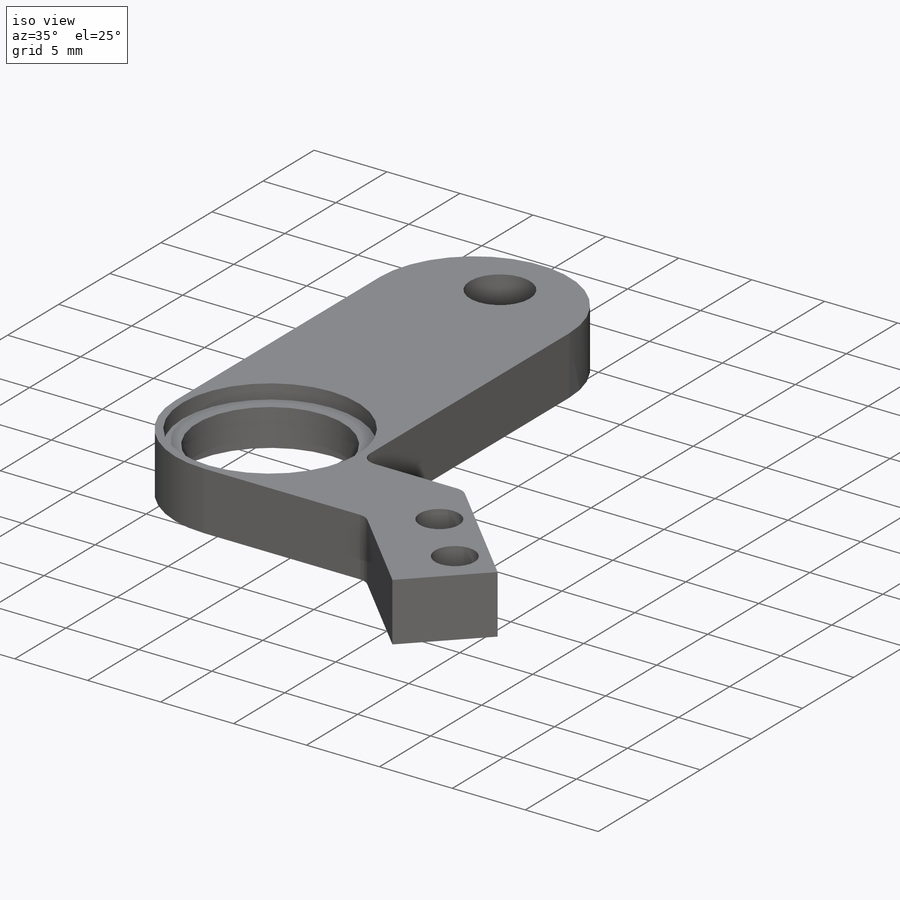
[diagram: iso view]
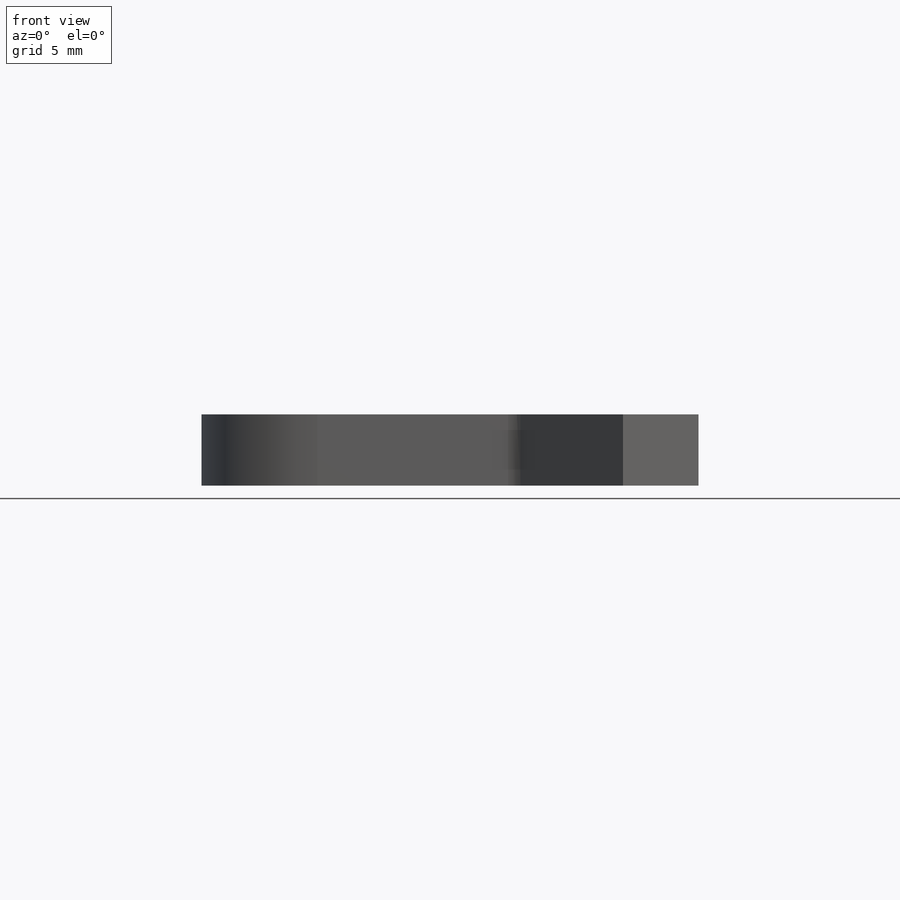
[diagram: front view]
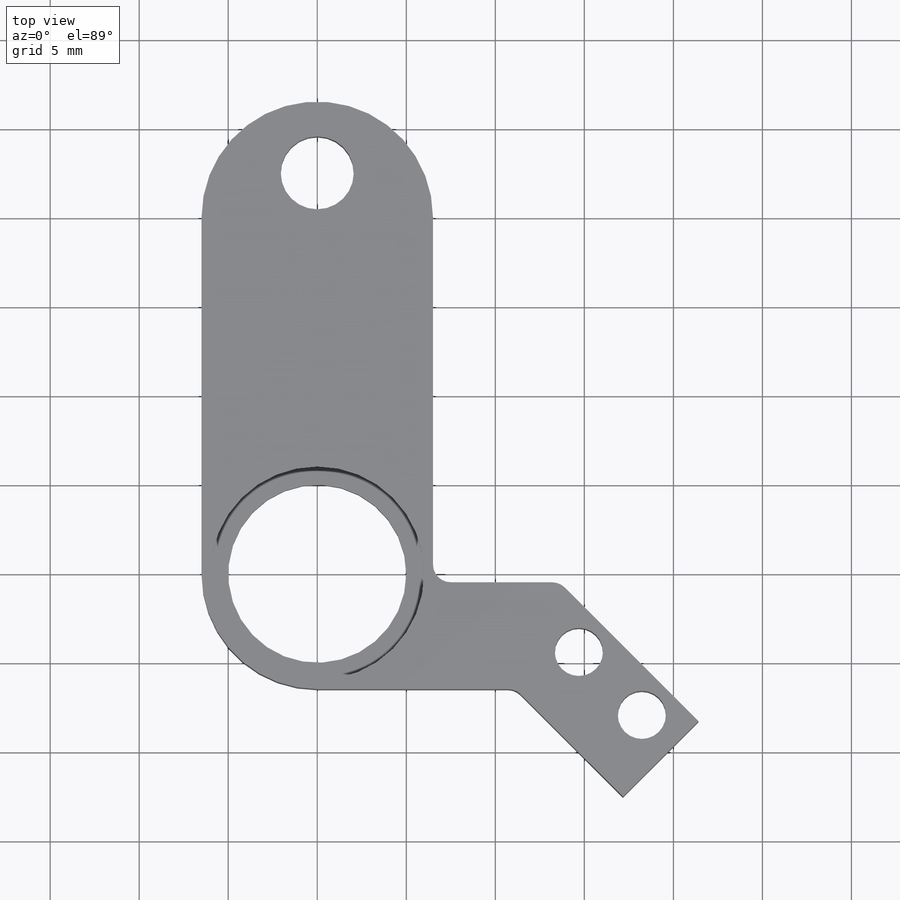
[diagram: top view]
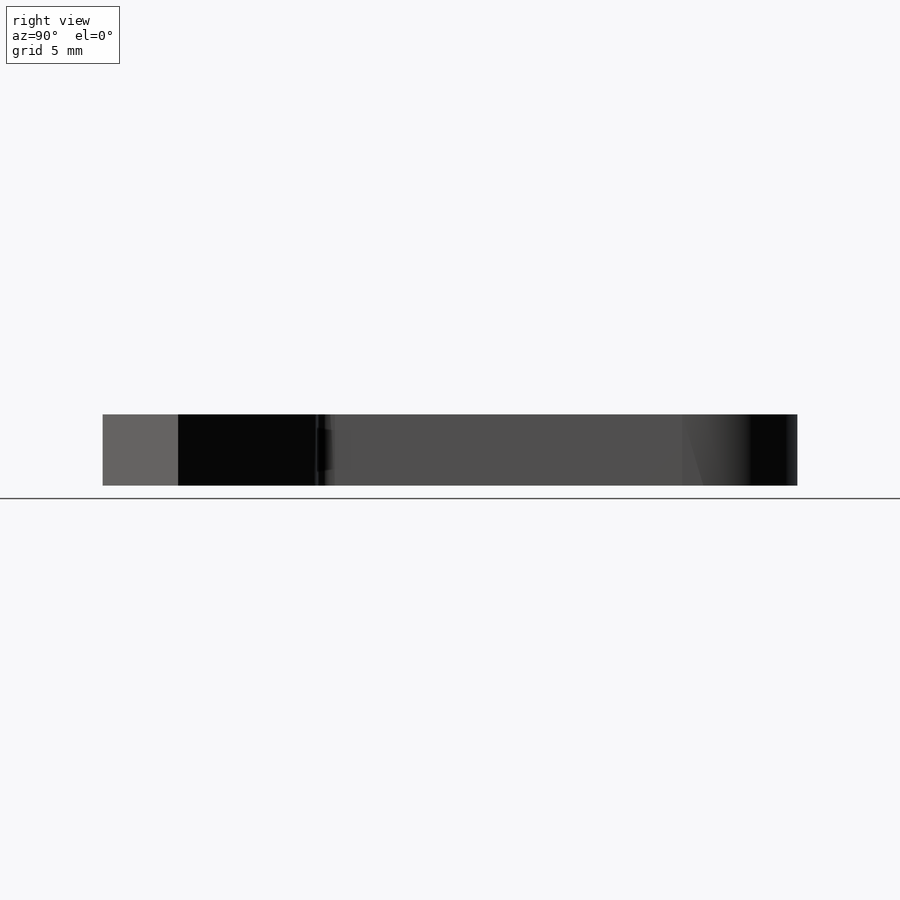
[diagram: right view]
SOLIDWORKS PART (.sldprt)
format: sldprt  version: not decoded by parser v0  size: 226,304 bytes
history: native  units: mm
features: sketch x6, plane x2, hole x2, fillet x2, material x1, extrude x1, cut_revolve x1 (+13 scaffold rows collapsed)
feature tree (28):
  scaffold x13  (default folders/planes/origin — collapsed)
  material  "Material <not specified>"
  plane  "Plane1"
  sketch  "Sketch1"
  extrude  "Boss-Extrude1"  Depth=4mm
  plane  "Plane2"  Offset=20mm
  sketch  "Sketch2"  dims[D1=1.0mm]
  cut_revolve  "Cut-Revolve1"  Angle=360deg
  hole  "Ø4.1 (4.1) Diameter Hole1"  Diameter=4.1mm Depth=4mm
  sketch  "Sketch4"
  sketch  "Sketch3"  dims[hole-wizard template sketch: 60 standard entries collapsed; hole parameters kept: c18.Thru Hole Depth=4.0mm]
  hole  "Ø2.7 (2.7) Diameter Hole1"  Diameter=2.7mm Depth=4mm
  sketch  "Sketch6"
  sketch  "Sketch5"  dims[hole-wizard template sketch: 60 standard entries collapsed; hole parameters kept: c18.Thru Hole Depth=4.0mm]
  fillet  "Fillet1"  Radius=1mm
  fillet  "Fillet2"  Radius=6.5mm
decode coverage: 9 of 12 modeling features carry decoded parameters
note: ~ marks probable driven/reference dimensions
note: suppression state not decoded; provenance and decode notes live in map.json
